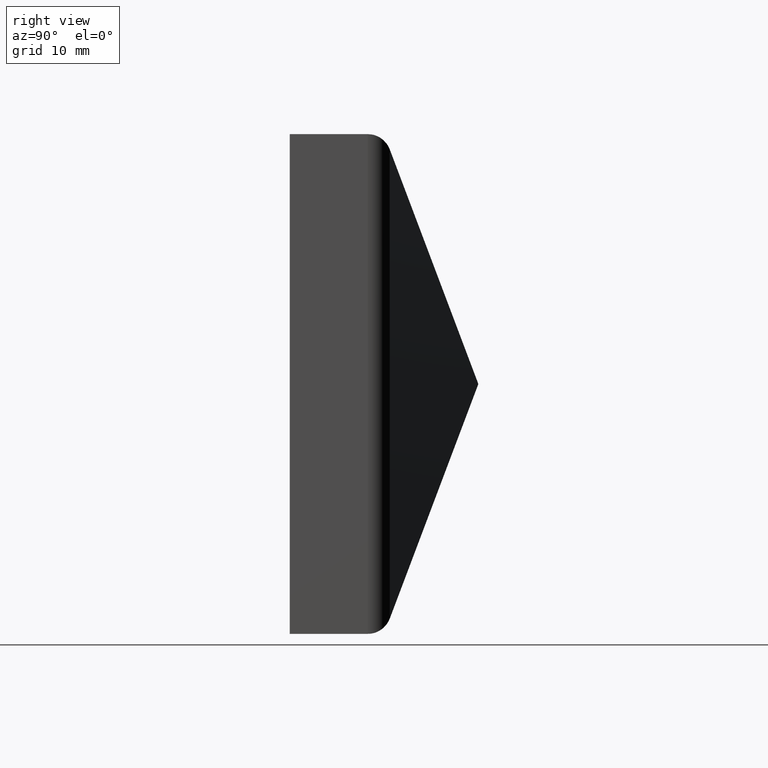
[diagram: clean part render]
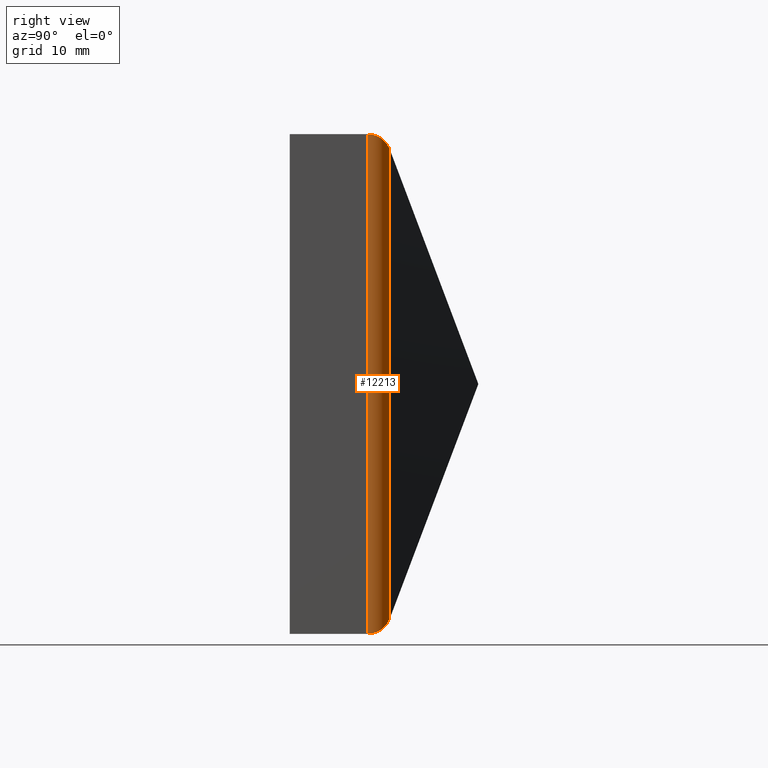
[diagram: same view with one face highlighted and labeled with its STEP entity id]
A machine part, right view. The second image highlights one B-rep face of the part: STEP entity #12213.
In plain terms, the highlighted cylindrical surface (edge-blend (fillet) strip) has radius 2.5 mm, axis along (-0, -0, 1).
Its self-contained STEP definition (entity closure, byte-faithful):
#228 = EDGE_CURVE ( 'NONE', #1856, #3180, #571, .T. ) ;
#484 = ORIENTED_EDGE ( 'NONE', *, *, #228, .F. ) ;
#571 = LINE ( 'NONE', #6188, #1907 ) ;
#1006 = CARTESIAN_POINT ( 'NONE',  ( 24.88317557470181995, 10.61054293763360867, 24.88317557470180574 ) ) ;
#1587 = CYLINDRICAL_SURFACE ( 'NONE', #2604, 2.499999999999998668 ) ;
#1841 = CARTESIAN_POINT ( 'NONE',  ( 26.50000000000002132, 8.271739631613602484, 26.49999999999999645 ) ) ;
#1856 = VERTEX_POINT ( 'NONE', #5581 ) ;
#1907 = VECTOR ( 'NONE', #11134, 1000.000000000000000 ) ;
#1918 = EDGE_LOOP ( 'NONE', ( #6637, #10106, #11362, #484 ) ) ;
#2108 = VECTOR ( 'NONE', #3680, 1000.000000000000000 ) ;
#2242 = CARTESIAN_POINT ( 'NONE',  ( 26.50000000000000000, 9.346632133441739043, -26.50000000000000000 ) ) ;
#2604 = AXIS2_PLACEMENT_3D ( 'NONE', #6058, #4169, #9797 ) ;
#2733 = CARTESIAN_POINT ( 'NONE',  ( 24.88317557470181995, 10.61054293763360867, -26.49999999999999645 ) ) ;
#3180 = VERTEX_POINT ( 'NONE', #4136 ) ;
#3462 = VERTEX_POINT ( 'NONE', #1006 ) ;
#3680 = DIRECTION ( 'NONE',  ( -0.000000000000000000, -0.000000000000000000, 1.000000000000000000 ) ) ;
#3830 = CARTESIAN_POINT ( 'NONE',  ( 26.50000000000000000, 9.346632133441744372, 26.50000000000001066 ) ) ;
#3867 = EDGE_CURVE ( 'NONE', #5399, #1856, #10057, .T. ) ;
#4136 = CARTESIAN_POINT ( 'NONE',  ( 26.50000000000002132, 8.271739631613602484, 26.49999999999999645 ) ) ;
#4169 = DIRECTION ( 'NONE',  ( -0.000000000000000000, -0.000000000000000000, 1.000000000000000000 ) ) ;
#4447 = LINE ( 'NONE', #2733, #2108 ) ;
#4548 = FACE_OUTER_BOUND ( 'NONE', #1918, .T. ) ;
#4939 = CARTESIAN_POINT ( 'NONE',  ( 24.88317557470182351, 10.61054293763360867, -24.88317557470181995 ) ) ;
#5399 = VERTEX_POINT ( 'NONE', #11543 ) ;
#5581 = CARTESIAN_POINT ( 'NONE',  ( 26.50000000000000711, 8.271739631613602484, -26.50000000000000355 ) ) ;
#5901 = CARTESIAN_POINT ( 'NONE',  ( 26.50000000000000711, 8.271739631613602484, -26.50000000000000355 ) ) ;
#6058 = CARTESIAN_POINT ( 'NONE',  ( 24.00000000000000711, 8.271739631613602484, -26.49999999999999645 ) ) ;
#6188 = CARTESIAN_POINT ( 'NONE',  ( 26.50000000000000711, 8.271739631613602484, -26.49999999999999645 ) ) ;
#6637 = ORIENTED_EDGE ( 'NONE', *, *, #3867, .F. ) ;
#6883 = EDGE_CURVE ( 'NONE', #5399, #3462, #4447, .T. ) ;
#8444 = CARTESIAN_POINT ( 'NONE',  ( 24.88317557470181995, 10.61054293763360867, 24.88317557470180574 ) ) ;
#9590 = EDGE_CURVE ( 'NONE', #3180, #3462, #10619, .T. ) ;
#9797 = DIRECTION ( 'NONE',  ( 1.000000000000000000, 0.000000000000000000, 0.000000000000000000 ) ) ;
#10057 =( BOUNDED_CURVE ( )  B_SPLINE_CURVE ( 3, ( #4939, #11497, #2242, #5901 ),
 .UNSPECIFIED., .F., .F. ) 
 B_SPLINE_CURVE_WITH_KNOTS ( ( 4, 4 ),
 ( 1.931860756477468577, 3.141592653589793116 ),
 .UNSPECIFIED. ) 
 CURVE ( )  GEOMETRIC_REPRESENTATION_ITEM ( )  RATIONAL_B_SPLINE_CURVE ( ( 1.000000000000000000, 0.8817188890797196255, 0.8817188890797196255, 1.000000000000000000 ) ) 
 REPRESENTATION_ITEM ( '' )  );
#10106 = ORIENTED_EDGE ( 'NONE', *, *, #6883, .T. ) ;
#10619 =( BOUNDED_CURVE ( )  B_SPLINE_CURVE ( 3, ( #1841, #3830, #11370, #8444 ),
 .UNSPECIFIED., .F., .F. ) 
 B_SPLINE_CURVE_WITH_KNOTS ( ( 4, 4 ),
 ( 0.000000000000000000, 1.209731897112328536 ),
 .UNSPECIFIED. ) 
 CURVE ( )  GEOMETRIC_REPRESENTATION_ITEM ( )  RATIONAL_B_SPLINE_CURVE ( ( 1.000000000000000000, 0.8817188890797187373, 0.8817188890797187373, 1.000000000000000000 ) ) 
 REPRESENTATION_ITEM ( '' )  );
#11134 = DIRECTION ( 'NONE',  ( -0.000000000000000000, -0.000000000000000000, 1.000000000000000000 ) ) ;
#11362 = ORIENTED_EDGE ( 'NONE', *, *, #9590, .F. ) ;
#11370 = CARTESIAN_POINT ( 'NONE',  ( 25.88876042945852518, 10.23081541641571590, 25.88876042945853584 ) ) ;
#11497 = CARTESIAN_POINT ( 'NONE',  ( 25.88876042945851808, 10.23081541641570880, -25.88876042945852873 ) ) ;
#11543 = CARTESIAN_POINT ( 'NONE',  ( 24.88317557470182351, 10.61054293763360867, -24.88317557470181995 ) ) ;
#12213 = ADVANCED_FACE ( 'NONE', ( #4548 ), #1587, .T. ) ;